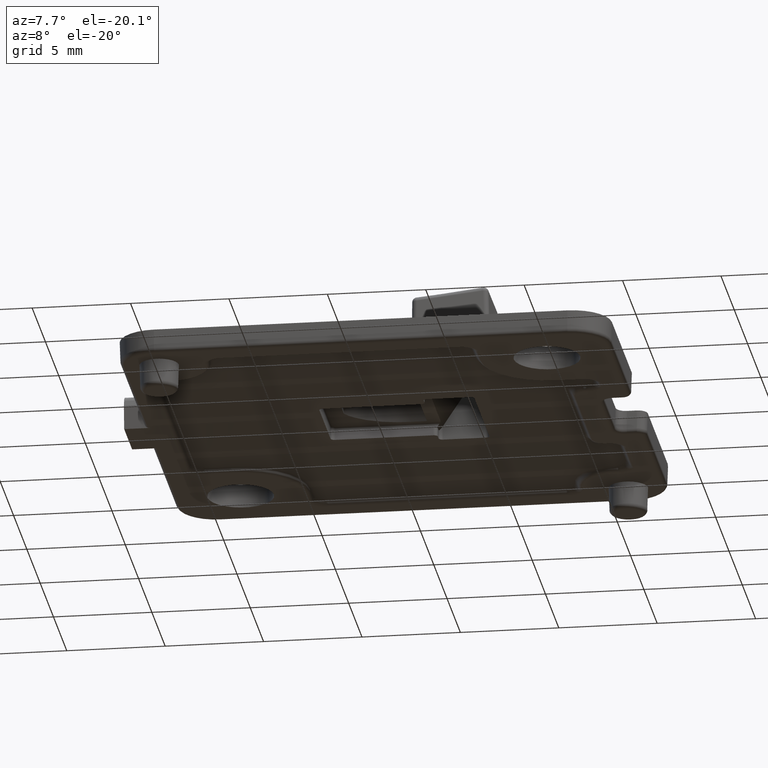
[diagram: clean part render]
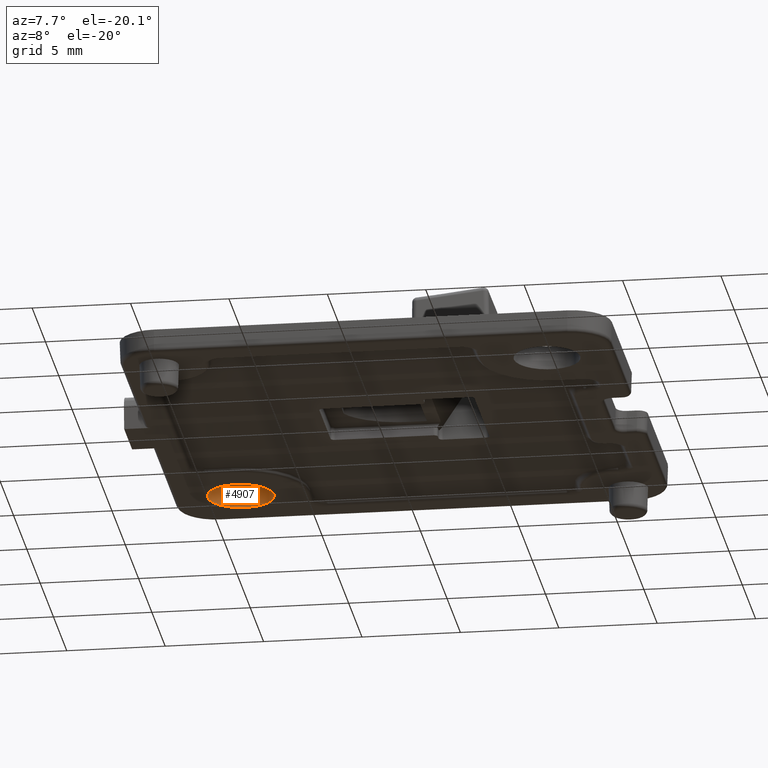
[diagram: same view with one face highlighted and labeled with its STEP entity id]
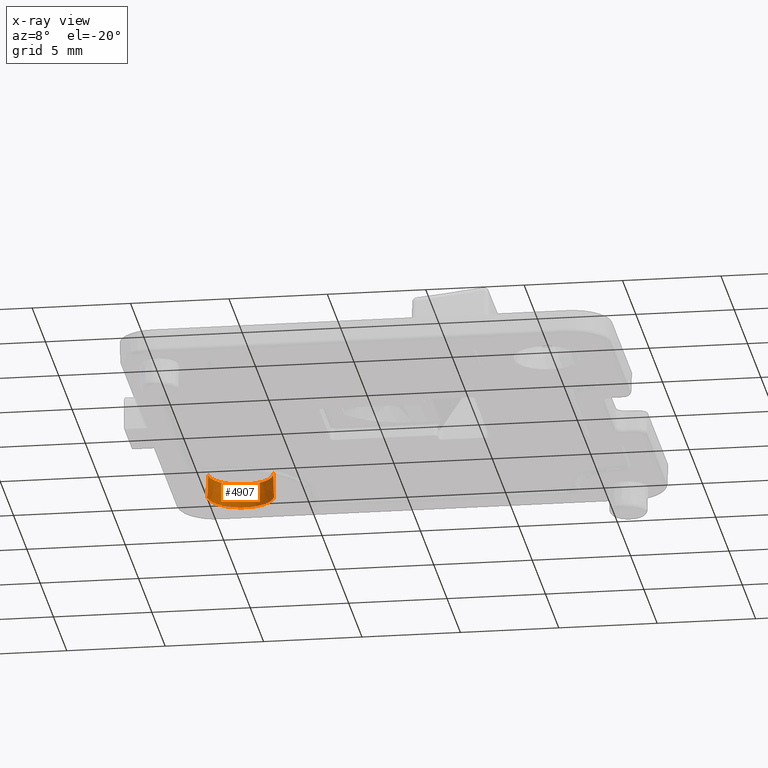
[diagram: x-ray of the same camera — body ghosted, the highlighted face saturated]
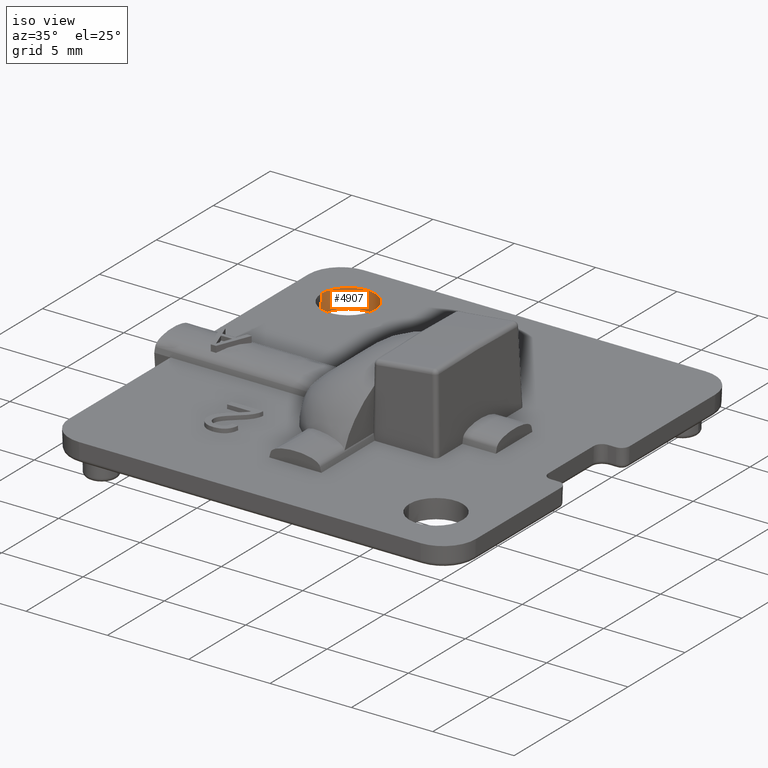
[diagram: same view with one face highlighted and labeled with its STEP entity id]
A machine part, auxiliary view. The second image highlights one B-rep face of the part: STEP entity #4907.
The next image is the same camera in x-ray: the body ghosted, the highlighted face saturated — about 0% of this face is hidden behind the body in this view.
A second angle (iso view) of the same face is appended — the face is thin or edge-on in the first view.
In plain terms, the highlighted conical surface has half-angle 2 deg.
Its self-contained STEP definition (entity closure, byte-faithful):
#755 = AXIS2_PLACEMENT_3D ( 'NONE', #7009, #3276, #7634 ) ;
#808 = VERTEX_POINT ( 'NONE', #2398 ) ;
#1078 = ORIENTED_EDGE ( 'NONE', *, *, #3945, .T. ) ;
#1125 = VERTEX_POINT ( 'NONE', #1546 ) ;
#1130 = VECTOR ( 'NONE', #4223, 1000.000000000000100 ) ;
#1187 = VERTEX_POINT ( 'NONE', #4131 ) ;
#1546 = CARTESIAN_POINT ( 'NONE',  ( -10.65000000000000000, 9.000000000000000000, 1.200000000000000000 ) ) ;
#1812 = CARTESIAN_POINT ( 'NONE',  ( -9.000000000000000000, 9.000000000000000000, 0.0000000000000000000 ) ) ;
#2374 = LINE ( 'NONE', #7941, #1130 ) ;
#2398 = CARTESIAN_POINT ( 'NONE',  ( -10.69190492339009800, 9.000000000000000000, 0.0000000000000000000 ) ) ;
#2424 = DIRECTION ( 'NONE',  ( 1.000000000000000000, 0.0000000000000000000, 0.0000000000000000000 ) ) ;
#2762 = AXIS2_PLACEMENT_3D ( 'NONE', #1812, #6169, #2424 ) ;
#3091 = EDGE_LOOP ( 'NONE', ( #5177, #6156, #1078, #6749 ) ) ;
#3205 = CARTESIAN_POINT ( 'NONE',  ( -7.308095076609901300, 9.000000000000000000, 0.0000000000000000000 ) ) ;
#3276 = DIRECTION ( 'NONE',  ( 0.0000000000000000000, 0.0000000000000000000, 1.000000000000000000 ) ) ;
#3469 = EDGE_CURVE ( 'NONE', #7423, #808, #7712, .T. ) ;
#3913 = VECTOR ( 'NONE', #5680, 1000.000000000000100 ) ;
#3945 = EDGE_CURVE ( 'NONE', #1125, #808, #2374, .T. ) ;
#4131 = CARTESIAN_POINT ( 'NONE',  ( -7.349999999999998800, 9.000000000000000000, 1.200000000000000000 ) ) ;
#4223 = DIRECTION ( 'NONE',  ( -0.03489949670250104600, 0.0000000000000000000, -0.9993908270190956500 ) ) ;
#4421 = CARTESIAN_POINT ( 'NONE',  ( -9.000000000000000000, 9.000000000000000000, 1.200000000000000000 ) ) ;
#4583 = AXIS2_PLACEMENT_3D ( 'NONE', #4421, #7520, #5045 ) ;
#4907 = ADVANCED_FACE ( 'NONE', ( #7224 ), #7030, .F. ) ;
#4922 = EDGE_CURVE ( 'NONE', #1187, #7423, #5580, .T. ) ;
#5045 = DIRECTION ( 'NONE',  ( -1.000000000000000000, 0.0000000000000000000, 0.0000000000000000000 ) ) ;
#5177 = ORIENTED_EDGE ( 'NONE', *, *, #4922, .F. ) ;
#5580 = LINE ( 'NONE', #6927, #3913 ) ;
#5680 = DIRECTION ( 'NONE',  ( 0.03489949670250104600, 4.273955692857151000E-018, -0.9993908270190956500 ) ) ;
#6047 = CIRCLE ( 'NONE', #755, 1.650000000000000400 ) ;
#6156 = ORIENTED_EDGE ( 'NONE', *, *, #6490, .T. ) ;
#6169 = DIRECTION ( 'NONE',  ( 0.0000000000000000000, 0.0000000000000000000, 1.000000000000000000 ) ) ;
#6490 = EDGE_CURVE ( 'NONE', #1187, #1125, #6047, .T. ) ;
#6749 = ORIENTED_EDGE ( 'NONE', *, *, #3469, .F. ) ;
#6927 = CARTESIAN_POINT ( 'NONE',  ( -7.349999999999998800, 9.000000000000000000, 1.200000000000000000 ) ) ;
#7009 = CARTESIAN_POINT ( 'NONE',  ( -9.000000000000000000, 9.000000000000000000, 1.200000000000000000 ) ) ;
#7030 = CONICAL_SURFACE ( 'NONE', #4583, 1.650000000000000400, 0.03490658503988666700 ) ;
#7224 = FACE_OUTER_BOUND ( 'NONE', #3091, .T. ) ;
#7423 = VERTEX_POINT ( 'NONE', #3205 ) ;
#7520 = DIRECTION ( 'NONE',  ( -0.0000000000000000000, -0.0000000000000000000, -1.000000000000000000 ) ) ;
#7634 = DIRECTION ( 'NONE',  ( 1.000000000000000000, 0.0000000000000000000, 0.0000000000000000000 ) ) ;
#7712 = CIRCLE ( 'NONE', #2762, 1.691904923390098000 ) ;
#7941 = CARTESIAN_POINT ( 'NONE',  ( -10.65000000000000000, 9.000000000000000000, 1.200000000000000000 ) ) ;